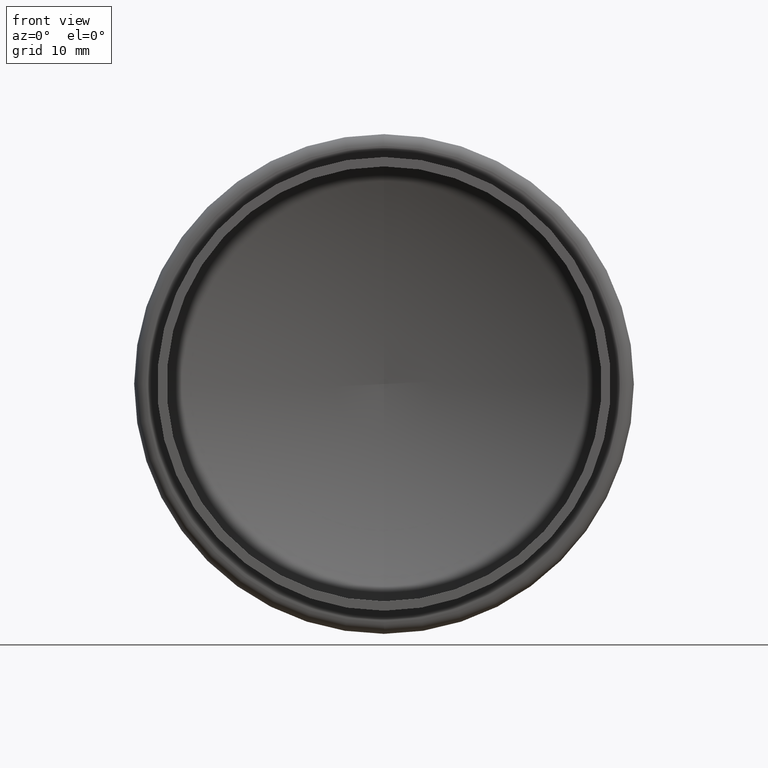
[diagram: clean part render]
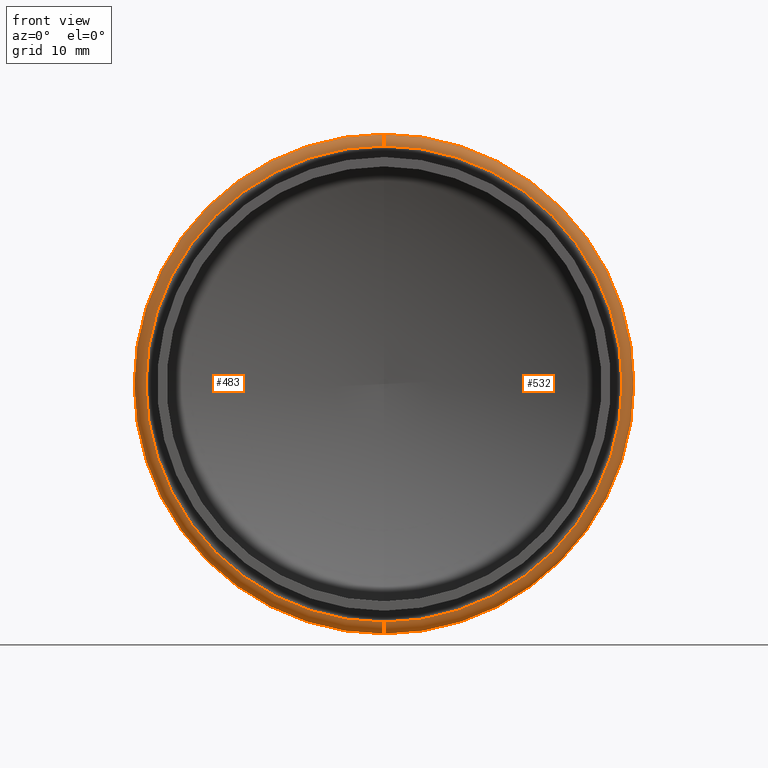
[diagram: same view with one multi-face feature highlighted, each face labeled with its STEP entity id]
A machine part, front view. The highlighted faces form ONE feature: a constant-radius fillet chain: 2 tangent blend faces with common blend radius 1 mm. The faces share edges in the B-rep.
Their STEP definitions:
[1] entity #532 (Torus):
#35 = VERTEX_POINT ( 'NONE', #44 ) ;
#44 = CARTESIAN_POINT ( 'NONE',  ( 0.0000000000000000000, 9.000000000000000000, -20.19999999999999200 ) ) ;
#66 = CARTESIAN_POINT ( 'NONE',  ( 0.0000000000000000000, 10.00000000000000000, 0.0000000000000000000 ) ) ;
#76 = CARTESIAN_POINT ( 'NONE',  ( 0.0000000000000000000, 10.00000000000000700, 0.0000000000000000000 ) ) ;
#79 = DIRECTION ( 'NONE',  ( -0.0000000000000000000, -1.000000000000000000, -0.0000000000000000000 ) ) ;
#106 = CARTESIAN_POINT ( 'NONE',  ( 0.0000000000000000000, 9.000000000000000000, 0.0000000000000000000 ) ) ;
#130 = CIRCLE ( 'NONE', #534, 21.19999999999999900 ) ;
#141 = VERTEX_POINT ( 'NONE', #511 ) ;
#193 = CARTESIAN_POINT ( 'NONE',  ( 2.596251214192388800E-015, 10.00000000000000700, 21.19999999999999900 ) ) ;
#202 = DIRECTION ( 'NONE',  ( 0.0000000000000000000, 0.0000000000000000000, -1.000000000000000000 ) ) ;
#207 = DIRECTION ( 'NONE',  ( -1.000000000000000000, 0.0000000000000000000, 0.0000000000000000000 ) ) ;
#208 = CIRCLE ( 'NONE', #613, 1.000000000000000900 ) ;
#214 = ORIENTED_EDGE ( 'NONE', *, *, #293, .T. ) ;
#224 = AXIS2_PLACEMENT_3D ( 'NONE', #66, #522, #202 ) ;
#227 = EDGE_LOOP ( 'NONE', ( #373, #214, #374, #635 ) ) ;
#244 = DIRECTION ( 'NONE',  ( 1.000000000000000000, 0.0000000000000000000, -1.224646799147353200E-016 ) ) ;
#253 = DIRECTION ( 'NONE',  ( 0.0000000000000000000, 0.0000000000000000000, 1.000000000000000000 ) ) ;
#255 = AXIS2_PLACEMENT_3D ( 'NONE', #556, #244, #349 ) ;
#269 = CIRCLE ( 'NONE', #255, 1.000000000000000900 ) ;
#282 = TOROIDAL_SURFACE ( 'NONE', #224, 20.19999999999999900, 1.000000000000000900 ) ;
#293 = EDGE_CURVE ( 'NONE', #547, #499, #269, .T. ) ;
#320 = CARTESIAN_POINT ( 'NONE',  ( 0.0000000000000000000, 10.00000000000000000, -20.19999999999999900 ) ) ;
#327 = EDGE_CURVE ( 'NONE', #141, #547, #130, .T. ) ;
#339 = CIRCLE ( 'NONE', #433, 20.19999999999999200 ) ;
#349 = DIRECTION ( 'NONE',  ( -1.224646799147353500E-016, 0.0000000000000000000, -1.000000000000000000 ) ) ;
#373 = ORIENTED_EDGE ( 'NONE', *, *, #327, .T. ) ;
#374 = ORIENTED_EDGE ( 'NONE', *, *, #452, .F. ) ;
#433 = AXIS2_PLACEMENT_3D ( 'NONE', #106, #464, #515 ) ;
#452 = EDGE_CURVE ( 'NONE', #35, #499, #339, .T. ) ;
#464 = DIRECTION ( 'NONE',  ( -0.0000000000000000000, -1.000000000000000000, -0.0000000000000000000 ) ) ;
#484 = DIRECTION ( 'NONE',  ( 0.0000000000000000000, 0.0000000000000000000, -1.000000000000000000 ) ) ;
#499 = VERTEX_POINT ( 'NONE', #558 ) ;
#511 = CARTESIAN_POINT ( 'NONE',  ( 0.0000000000000000000, 10.00000000000000700, -21.19999999999999900 ) ) ;
#515 = DIRECTION ( 'NONE',  ( 0.0000000000000000000, 0.0000000000000000000, -1.000000000000000000 ) ) ;
#522 = DIRECTION ( 'NONE',  ( -0.0000000000000000000, -1.000000000000000000, -0.0000000000000000000 ) ) ;
#532 = ADVANCED_FACE ( 'NONE', ( #597 ), #282, .T. ) ;
#534 = AXIS2_PLACEMENT_3D ( 'NONE', #76, #79, #484 ) ;
#547 = VERTEX_POINT ( 'NONE', #193 ) ;
#556 = CARTESIAN_POINT ( 'NONE',  ( 2.473786534277653200E-015, 10.00000000000000000, 20.19999999999999900 ) ) ;
#558 = CARTESIAN_POINT ( 'NONE',  ( 2.535018874235020400E-015, 9.000000000000000000, 20.19999999999999200 ) ) ;
#559 = EDGE_CURVE ( 'NONE', #141, #35, #208, .T. ) ;
#597 = FACE_OUTER_BOUND ( 'NONE', #227, .T. ) ;
#613 = AXIS2_PLACEMENT_3D ( 'NONE', #320, #207, #253 ) ;
#635 = ORIENTED_EDGE ( 'NONE', *, *, #559, .F. ) ;
[2] entity #483 (Torus):
#35 = VERTEX_POINT ( 'NONE', #44 ) ;
#44 = CARTESIAN_POINT ( 'NONE',  ( 0.0000000000000000000, 9.000000000000000000, -20.19999999999999200 ) ) ;
#53 = DIRECTION ( 'NONE',  ( -0.0000000000000000000, -1.000000000000000000, -0.0000000000000000000 ) ) ;
#95 = CARTESIAN_POINT ( 'NONE',  ( 0.0000000000000000000, 9.000000000000000000, 0.0000000000000000000 ) ) ;
#98 = DIRECTION ( 'NONE',  ( 0.0000000000000000000, 0.0000000000000000000, -1.000000000000000000 ) ) ;
#104 = DIRECTION ( 'NONE',  ( -0.0000000000000000000, -1.000000000000000000, -0.0000000000000000000 ) ) ;
#119 = AXIS2_PLACEMENT_3D ( 'NONE', #564, #53, #98 ) ;
#141 = VERTEX_POINT ( 'NONE', #511 ) ;
#173 = TOROIDAL_SURFACE ( 'NONE', #567, 20.19999999999999900, 1.000000000000000900 ) ;
#193 = CARTESIAN_POINT ( 'NONE',  ( 2.596251214192388800E-015, 10.00000000000000700, 21.19999999999999900 ) ) ;
#207 = DIRECTION ( 'NONE',  ( -1.000000000000000000, 0.0000000000000000000, 0.0000000000000000000 ) ) ;
#208 = CIRCLE ( 'NONE', #613, 1.000000000000000900 ) ;
#235 = CIRCLE ( 'NONE', #393, 20.19999999999999200 ) ;
#242 = EDGE_CURVE ( 'NONE', #499, #35, #235, .T. ) ;
#244 = DIRECTION ( 'NONE',  ( 1.000000000000000000, 0.0000000000000000000, -1.224646799147353200E-016 ) ) ;
#253 = DIRECTION ( 'NONE',  ( 0.0000000000000000000, 0.0000000000000000000, 1.000000000000000000 ) ) ;
#255 = AXIS2_PLACEMENT_3D ( 'NONE', #556, #244, #349 ) ;
#269 = CIRCLE ( 'NONE', #255, 1.000000000000000900 ) ;
#280 = EDGE_LOOP ( 'NONE', ( #376, #301, #622, #634 ) ) ;
#293 = EDGE_CURVE ( 'NONE', #547, #499, #269, .T. ) ;
#296 = DIRECTION ( 'NONE',  ( -0.0000000000000000000, -1.000000000000000000, -0.0000000000000000000 ) ) ;
#301 = ORIENTED_EDGE ( 'NONE', *, *, #467, .T. ) ;
#320 = CARTESIAN_POINT ( 'NONE',  ( 0.0000000000000000000, 10.00000000000000000, -20.19999999999999900 ) ) ;
#349 = DIRECTION ( 'NONE',  ( -1.224646799147353500E-016, 0.0000000000000000000, -1.000000000000000000 ) ) ;
#362 = DIRECTION ( 'NONE',  ( 0.0000000000000000000, 0.0000000000000000000, -1.000000000000000000 ) ) ;
#376 = ORIENTED_EDGE ( 'NONE', *, *, #293, .F. ) ;
#393 = AXIS2_PLACEMENT_3D ( 'NONE', #95, #296, #447 ) ;
#414 = CARTESIAN_POINT ( 'NONE',  ( 0.0000000000000000000, 10.00000000000000000, 0.0000000000000000000 ) ) ;
#421 = FACE_OUTER_BOUND ( 'NONE', #280, .T. ) ;
#447 = DIRECTION ( 'NONE',  ( 0.0000000000000000000, 0.0000000000000000000, -1.000000000000000000 ) ) ;
#467 = EDGE_CURVE ( 'NONE', #547, #141, #553, .T. ) ;
#483 = ADVANCED_FACE ( 'NONE', ( #421 ), #173, .T. ) ;
#499 = VERTEX_POINT ( 'NONE', #558 ) ;
#511 = CARTESIAN_POINT ( 'NONE',  ( 0.0000000000000000000, 10.00000000000000700, -21.19999999999999900 ) ) ;
#547 = VERTEX_POINT ( 'NONE', #193 ) ;
#553 = CIRCLE ( 'NONE', #119, 21.19999999999999900 ) ;
#556 = CARTESIAN_POINT ( 'NONE',  ( 2.473786534277653200E-015, 10.00000000000000000, 20.19999999999999900 ) ) ;
#558 = CARTESIAN_POINT ( 'NONE',  ( 2.535018874235020400E-015, 9.000000000000000000, 20.19999999999999200 ) ) ;
#559 = EDGE_CURVE ( 'NONE', #141, #35, #208, .T. ) ;
#564 = CARTESIAN_POINT ( 'NONE',  ( 0.0000000000000000000, 10.00000000000000700, 0.0000000000000000000 ) ) ;
#567 = AXIS2_PLACEMENT_3D ( 'NONE', #414, #104, #362 ) ;
#613 = AXIS2_PLACEMENT_3D ( 'NONE', #320, #207, #253 ) ;
#622 = ORIENTED_EDGE ( 'NONE', *, *, #559, .T. ) ;
#634 = ORIENTED_EDGE ( 'NONE', *, *, #242, .F. ) ;